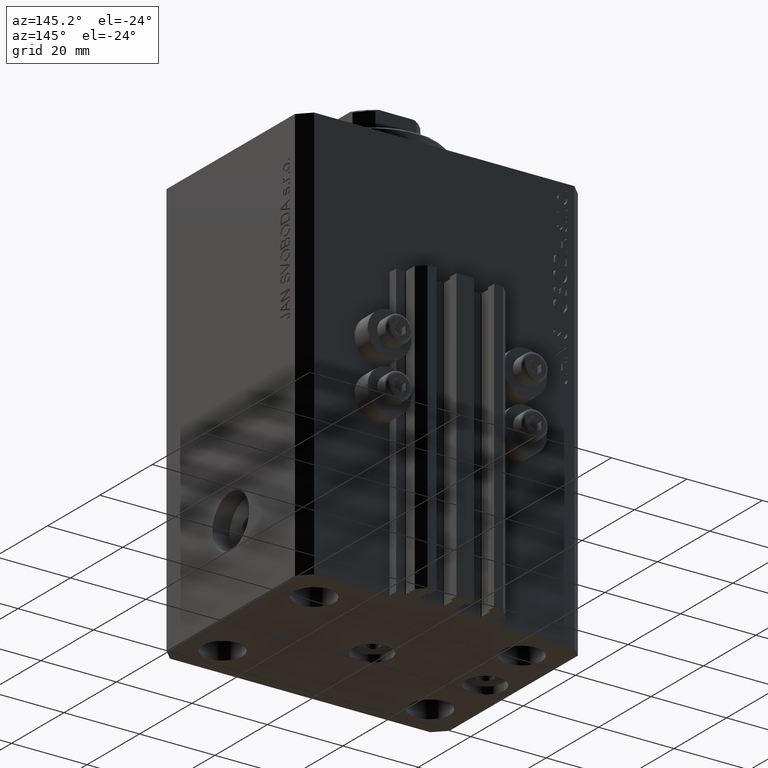
[diagram: clean part render]
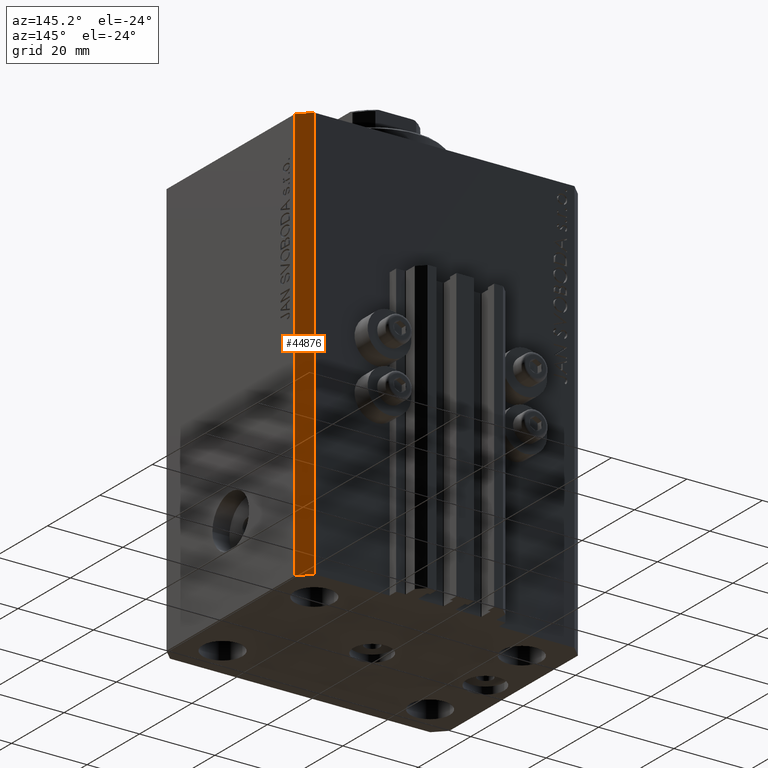
[diagram: same view with one face highlighted and labeled with its STEP entity id]
A machine part, auxiliary view. The second image highlights one B-rep face of the part: STEP entity #44876.
In plain terms, the highlighted planar face has unit normal (0.7071, 0.7071, 0).
Its self-contained STEP definition (entity closure, byte-faithful):
#1425 = VECTOR ( 'NONE', #34264, 1000.000000000000114 ) ;
#1956 = CARTESIAN_POINT ( 'NONE',  ( 34.50000000000056843, 27.50000000000000000, -110.0000000000000000 ) ) ;
#2602 = DIRECTION ( 'NONE',  ( -0.7071067811865364705, 0.7071067811865584529, 0.000000000000000000 ) ) ;
#2715 = LINE ( 'NONE', #46050, #16970 ) ;
#4358 = CARTESIAN_POINT ( 'NONE',  ( 37.50000000000051870, 24.49999999999995381, -110.0000000000000000 ) ) ;
#6123 = ORIENTED_EDGE ( 'NONE', *, *, #41202, .F. ) ;
#7944 = EDGE_CURVE ( 'NONE', #28281, #23215, #38843, .T. ) ;
#9600 = ORIENTED_EDGE ( 'NONE', *, *, #38617, .F. ) ;
#10429 = ORIENTED_EDGE ( 'NONE', *, *, #34240, .T. ) ;
#10824 = CARTESIAN_POINT ( 'NONE',  ( 37.50000000000051870, 24.49999999999995381, -110.0000000000000000 ) ) ;
#11226 = VERTEX_POINT ( 'NONE', #22706 ) ;
#12426 = VECTOR ( 'NONE', #42363, 1000.000000000000000 ) ;
#16039 = LINE ( 'NONE', #34245, #12426 ) ;
#16970 = VECTOR ( 'NONE', #42462, 1000.000000000000114 ) ;
#17589 = ORIENTED_EDGE ( 'NONE', *, *, #7944, .T. ) ;
#20402 = EDGE_LOOP ( 'NONE', ( #9600, #6123, #10429, #17589 ) ) ;
#20825 = PLANE ( 'NONE',  #21535 ) ;
#21505 = CARTESIAN_POINT ( 'NONE',  ( 34.50000000000056843, 27.50000000000000000, 0.000000000000000000 ) ) ;
#21535 = AXIS2_PLACEMENT_3D ( 'NONE', #28478, #38765, #2602 ) ;
#22706 = CARTESIAN_POINT ( 'NONE',  ( 37.50000000000051870, 24.49999999999995381, 0.000000000000000000 ) ) ;
#23215 = VERTEX_POINT ( 'NONE', #21505 ) ;
#28281 = VERTEX_POINT ( 'NONE', #32395 ) ;
#28478 = CARTESIAN_POINT ( 'NONE',  ( 37.50000000000051870, 24.49999999999995381, -110.0000000000000000 ) ) ;
#29889 = VERTEX_POINT ( 'NONE', #10824 ) ;
#32395 = CARTESIAN_POINT ( 'NONE',  ( 34.50000000000056843, 27.50000000000000000, -110.0000000000000000 ) ) ;
#33576 = LINE ( 'NONE', #4358, #1425 ) ;
#34240 = EDGE_CURVE ( 'NONE', #29889, #28281, #33576, .T. ) ;
#34245 = CARTESIAN_POINT ( 'NONE',  ( 37.50000000000051870, 24.49999999999995381, -110.0000000000000000 ) ) ;
#34264 = DIRECTION ( 'NONE',  ( -0.7071067811865364705, 0.7071067811865584529, 0.000000000000000000 ) ) ;
#38617 = EDGE_CURVE ( 'NONE', #11226, #23215, #2715, .T. ) ;
#38749 = VECTOR ( 'NONE', #39085, 1000.000000000000000 ) ;
#38765 = DIRECTION ( 'NONE',  ( 0.7071067811865585639, 0.7071067811865365815, -0.000000000000000000 ) ) ;
#38843 = LINE ( 'NONE', #1956, #38749 ) ;
#39085 = DIRECTION ( 'NONE',  ( 0.000000000000000000, 0.000000000000000000, 1.000000000000000000 ) ) ;
#39718 = FACE_OUTER_BOUND ( 'NONE', #20402, .T. ) ;
#41202 = EDGE_CURVE ( 'NONE', #29889, #11226, #16039, .T. ) ;
#42363 = DIRECTION ( 'NONE',  ( 0.000000000000000000, 0.000000000000000000, 1.000000000000000000 ) ) ;
#42462 = DIRECTION ( 'NONE',  ( -0.7071067811865364705, 0.7071067811865584529, 0.000000000000000000 ) ) ;
#44876 = ADVANCED_FACE ( 'NONE', ( #39718 ), #20825, .T. ) ;
#46050 = CARTESIAN_POINT ( 'NONE',  ( 37.50000000000051870, 24.49999999999995381, 0.000000000000000000 ) ) ;